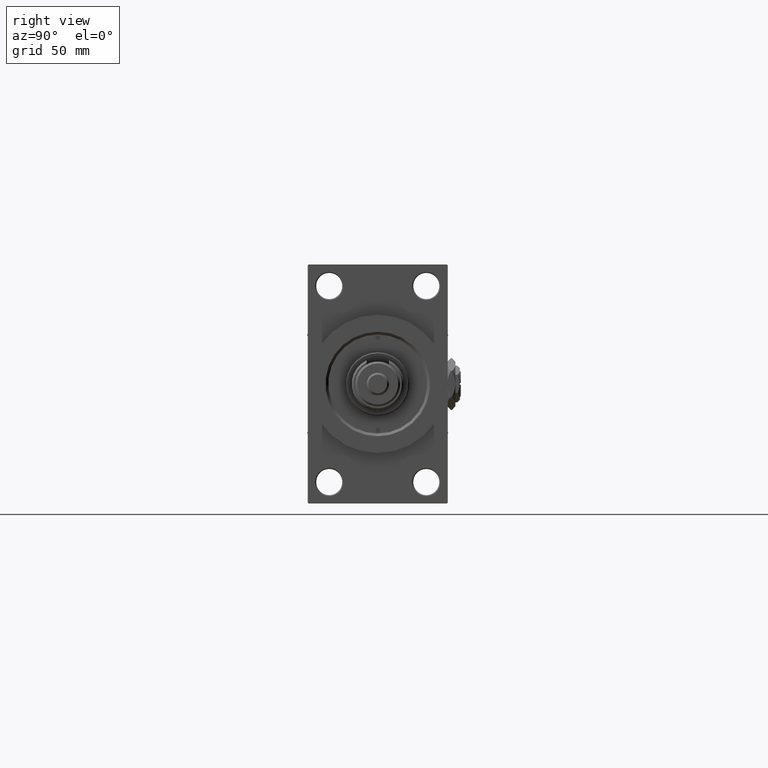
[diagram: clean part render]
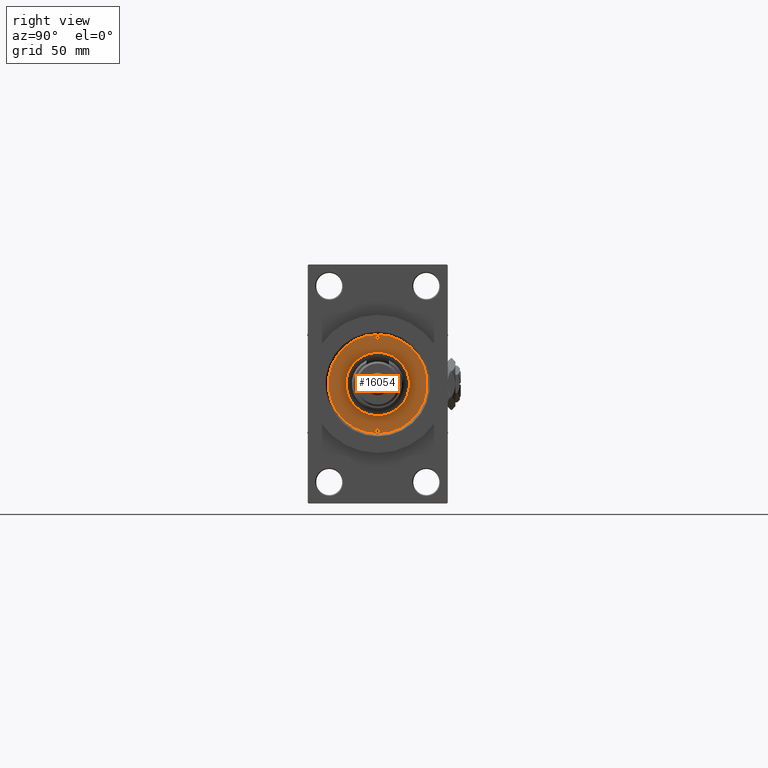
[diagram: same view with one face highlighted and labeled with its STEP entity id]
A machine part, right view. The second image highlights one B-rep face of the part: STEP entity #16054.
In plain terms, the highlighted planar face has unit normal (1, -0, -0).
Its self-contained STEP definition (entity closure, byte-faithful):
#941 = DIRECTION ( 'NONE',  ( 1.000000000000000000, 0.000000000000000000, 0.000000000000000000 ) ) ;
#1213 = DIRECTION ( 'NONE',  ( -0.000000000000000000, -0.000000000000000000, 1.000000000000000000 ) ) ;
#1428 = ORIENTED_EDGE ( 'NONE', *, *, #25320, .F. ) ;
#1977 = CARTESIAN_POINT ( 'NONE',  ( 17.00000000000000000, 2.081899558550500280E-15, 43.25999999999999801 ) ) ;
#3468 = DIRECTION ( 'NONE',  ( 1.000000000000000000, 0.000000000000000000, 0.000000000000000000 ) ) ;
#6108 = FACE_BOUND ( 'NONE', #29518, .T. ) ;
#6273 = CARTESIAN_POINT ( 'NONE',  ( 24.75000000000000000, 0.000000000000000000, 43.25999999999999801 ) ) ;
#6373 = AXIS2_PLACEMENT_3D ( 'NONE', #39714, #44915, #3468 ) ;
#6379 = DIRECTION ( 'NONE',  ( 1.000000000000000000, 0.000000000000000000, -0.000000000000000000 ) ) ;
#7208 = CIRCLE ( 'NONE', #6373, 17.00000000000000000 ) ;
#9662 = ORIENTED_EDGE ( 'NONE', *, *, #27770, .F. ) ;
#9831 = FACE_OUTER_BOUND ( 'NONE', #47836, .T. ) ;
#13102 = EDGE_LOOP ( 'NONE', ( #28331, #1428 ) ) ;
#13402 = DIRECTION ( 'NONE',  ( 1.000000000000000000, 0.000000000000000000, 0.000000000000000000 ) ) ;
#14804 = CIRCLE ( 'NONE', #35076, 1.249999999999997558 ) ;
#15399 = EDGE_CURVE ( 'NONE', #35112, #32943, #32155, .T. ) ;
#16054 = ADVANCED_FACE ( 'NONE', ( #30697, #42616, #6108, #9831 ), #18272, .T. ) ;
#16421 = CIRCLE ( 'NONE', #45153, 17.00000000000000000 ) ;
#17094 = CARTESIAN_POINT ( 'NONE',  ( -24.75000000000000000, 0.000000000000000000, 43.25999999999999801 ) ) ;
#17864 = EDGE_CURVE ( 'NONE', #18565, #33353, #33983, .T. ) ;
#18272 = PLANE ( 'NONE',  #48258 ) ;
#18565 = VERTEX_POINT ( 'NONE', #37848 ) ;
#20894 = CIRCLE ( 'NONE', #26828, 1.249999999999997558 ) ;
#21370 = CARTESIAN_POINT ( 'NONE',  ( -26.00000000000000000, 1.530808498934188612E-16, 43.25999999999999801 ) ) ;
#21448 = EDGE_CURVE ( 'NONE', #33353, #18565, #40854, .T. ) ;
#21998 = AXIS2_PLACEMENT_3D ( 'NONE', #17094, #1213, #13402 ) ;
#23116 = EDGE_CURVE ( 'NONE', #49129, #32527, #16421, .T. ) ;
#23580 = DIRECTION ( 'NONE',  ( 0.000000000000000000, 0.000000000000000000, 1.000000000000000000 ) ) ;
#25320 = EDGE_CURVE ( 'NONE', #32943, #35112, #14804, .T. ) ;
#25677 = CARTESIAN_POINT ( 'NONE',  ( 0.000000000000000000, 0.000000000000000000, 43.25999999999999801 ) ) ;
#25717 = CARTESIAN_POINT ( 'NONE',  ( -23.50000000000000355, 0.000000000000000000, 43.25999999999999801 ) ) ;
#26100 = DIRECTION ( 'NONE',  ( 1.000000000000000000, 0.000000000000000000, 0.000000000000000000 ) ) ;
#26828 = AXIS2_PLACEMENT_3D ( 'NONE', #45972, #46499, #45456 ) ;
#27770 = EDGE_CURVE ( 'NONE', #32527, #49129, #7208, .T. ) ;
#28016 = CARTESIAN_POINT ( 'NONE',  ( 0.000000000000000000, 0.000000000000000000, 43.25999999999999801 ) ) ;
#28331 = ORIENTED_EDGE ( 'NONE', *, *, #15399, .F. ) ;
#28361 = DIRECTION ( 'NONE',  ( 1.000000000000000000, 0.000000000000000000, 0.000000000000000000 ) ) ;
#28662 = CARTESIAN_POINT ( 'NONE',  ( -17.00000000000000000, 0.000000000000000000, 43.25999999999999801 ) ) ;
#29518 = EDGE_LOOP ( 'NONE', ( #44599, #9662 ) ) ;
#30697 = FACE_BOUND ( 'NONE', #13102, .T. ) ;
#31774 = DIRECTION ( 'NONE',  ( 1.000000000000000000, 0.000000000000000000, 0.000000000000000000 ) ) ;
#32155 = CIRCLE ( 'NONE', #21998, 1.249999999999997558 ) ;
#32271 = AXIS2_PLACEMENT_3D ( 'NONE', #28016, #44162, #40195 ) ;
#32438 = ORIENTED_EDGE ( 'NONE', *, *, #32966, .F. ) ;
#32527 = VERTEX_POINT ( 'NONE', #1977 ) ;
#32943 = VERTEX_POINT ( 'NONE', #21370 ) ;
#32966 = EDGE_CURVE ( 'NONE', #40746, #49025, #20894, .T. ) ;
#33353 = VERTEX_POINT ( 'NONE', #34278 ) ;
#33983 = CIRCLE ( 'NONE', #32271, 26.50000000000000355 ) ;
#34278 = CARTESIAN_POINT ( 'NONE',  ( -26.50000000000000355, 0.000000000000000000, 43.25999999999999801 ) ) ;
#35076 = AXIS2_PLACEMENT_3D ( 'NONE', #36568, #44503, #28361 ) ;
#35112 = VERTEX_POINT ( 'NONE', #25717 ) ;
#35695 = ORIENTED_EDGE ( 'NONE', *, *, #21448, .T. ) ;
#36568 = CARTESIAN_POINT ( 'NONE',  ( -24.75000000000000000, 0.000000000000000000, 43.25999999999999801 ) ) ;
#37183 = DIRECTION ( 'NONE',  ( 0.000000000000000000, 0.000000000000000000, 1.000000000000000000 ) ) ;
#37339 = CIRCLE ( 'NONE', #37380, 1.249999999999997558 ) ;
#37380 = AXIS2_PLACEMENT_3D ( 'NONE', #6273, #38018, #26100 ) ;
#37848 = CARTESIAN_POINT ( 'NONE',  ( 26.50000000000000355, 3.245314017740486554E-15, 43.25999999999999801 ) ) ;
#38018 = DIRECTION ( 'NONE',  ( -0.000000000000000000, -0.000000000000000000, 1.000000000000000000 ) ) ;
#38024 = ORIENTED_EDGE ( 'NONE', *, *, #43096, .F. ) ;
#39392 = CARTESIAN_POINT ( 'NONE',  ( 26.00000000000000000, 0.000000000000000000, 43.25999999999999801 ) ) ;
#39714 = CARTESIAN_POINT ( 'NONE',  ( 0.000000000000000000, 0.000000000000000000, 43.25999999999999801 ) ) ;
#39871 = CARTESIAN_POINT ( 'NONE',  ( 0.000000000000000000, 0.000000000000000000, 43.25999999999999801 ) ) ;
#40195 = DIRECTION ( 'NONE',  ( 1.000000000000000000, 0.000000000000000000, 0.000000000000000000 ) ) ;
#40746 = VERTEX_POINT ( 'NONE', #39392 ) ;
#40854 = CIRCLE ( 'NONE', #47629, 26.50000000000000355 ) ;
#42616 = FACE_BOUND ( 'NONE', #44283, .T. ) ;
#43096 = EDGE_CURVE ( 'NONE', #49025, #40746, #37339, .T. ) ;
#43699 = CARTESIAN_POINT ( 'NONE',  ( 0.000000000000000000, 0.000000000000000000, 43.25999999999999801 ) ) ;
#44162 = DIRECTION ( 'NONE',  ( 0.000000000000000000, 0.000000000000000000, 1.000000000000000000 ) ) ;
#44283 = EDGE_LOOP ( 'NONE', ( #32438, #38024 ) ) ;
#44503 = DIRECTION ( 'NONE',  ( -0.000000000000000000, -0.000000000000000000, 1.000000000000000000 ) ) ;
#44599 = ORIENTED_EDGE ( 'NONE', *, *, #23116, .F. ) ;
#44915 = DIRECTION ( 'NONE',  ( 0.000000000000000000, 0.000000000000000000, 1.000000000000000000 ) ) ;
#45153 = AXIS2_PLACEMENT_3D ( 'NONE', #43699, #23580, #31774 ) ;
#45456 = DIRECTION ( 'NONE',  ( 1.000000000000000000, 0.000000000000000000, 0.000000000000000000 ) ) ;
#45972 = CARTESIAN_POINT ( 'NONE',  ( 24.75000000000000000, 0.000000000000000000, 43.25999999999999801 ) ) ;
#46423 = ORIENTED_EDGE ( 'NONE', *, *, #17864, .T. ) ;
#46499 = DIRECTION ( 'NONE',  ( -0.000000000000000000, -0.000000000000000000, 1.000000000000000000 ) ) ;
#47629 = AXIS2_PLACEMENT_3D ( 'NONE', #39871, #37183, #941 ) ;
#47836 = EDGE_LOOP ( 'NONE', ( #35695, #46423 ) ) ;
#48258 = AXIS2_PLACEMENT_3D ( 'NONE', #25677, #50818, #6379 ) ;
#48265 = CARTESIAN_POINT ( 'NONE',  ( 23.50000000000000355, 1.530808498934188612E-16, 43.25999999999999801 ) ) ;
#49025 = VERTEX_POINT ( 'NONE', #48265 ) ;
#49129 = VERTEX_POINT ( 'NONE', #28662 ) ;
#50818 = DIRECTION ( 'NONE',  ( 0.000000000000000000, 0.000000000000000000, 1.000000000000000000 ) ) ;